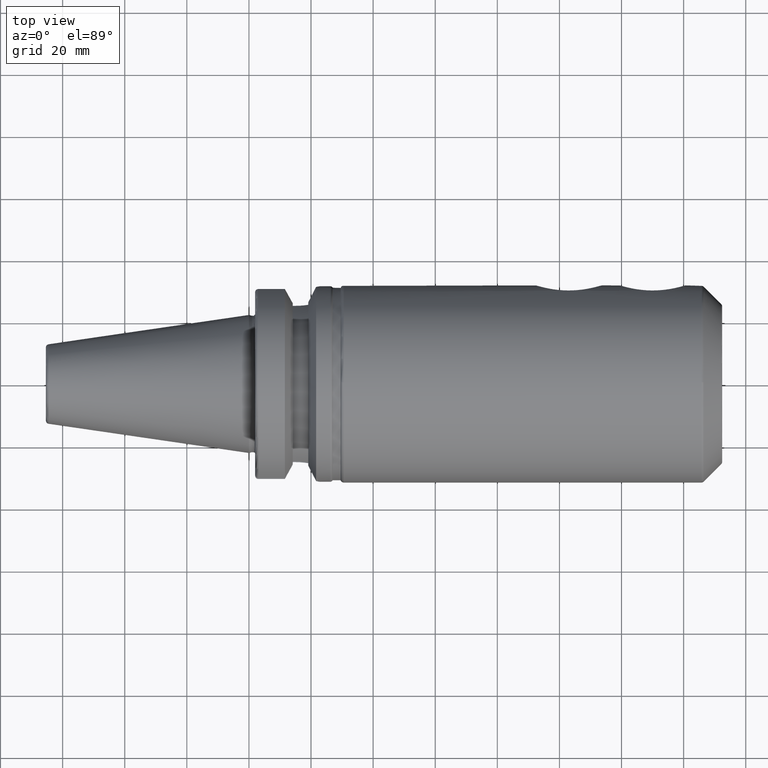
[diagram: clean part render]
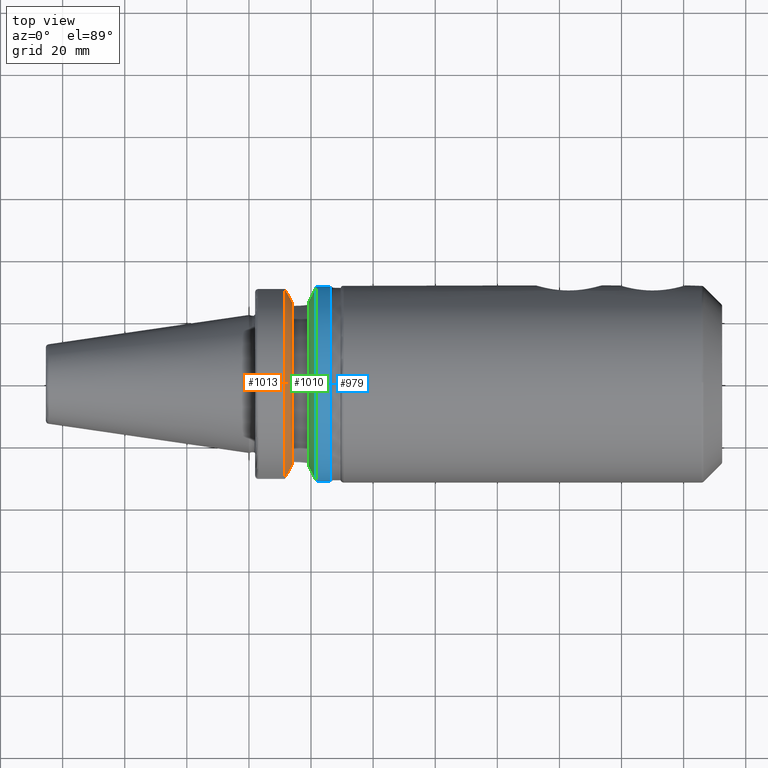
[diagram: same view with three faces highlighted in distinct colors, each labeled with its STEP entity id]
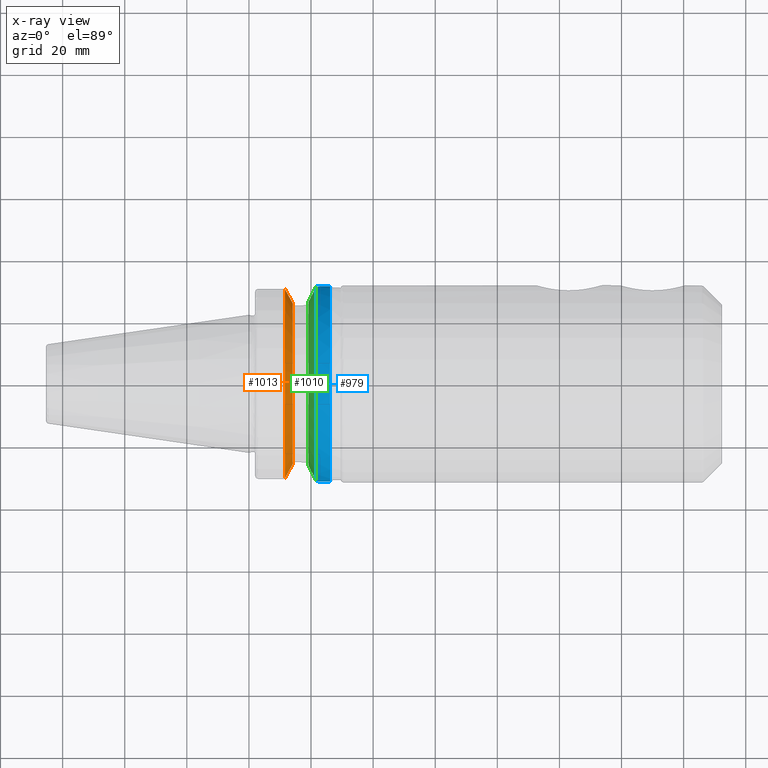
[diagram: x-ray of the same camera — body ghosted, the three highlighted faces saturated]
A machine part, top view with three faces highlighted in distinct colors.
The next image is the same camera in x-ray (body ghosted, the three faces saturated) — at least one of them is partly hidden behind the body in this view.
Their STEP definitions:

[orange] entity #1013 — the highlighted conical surface has half-angle 60.125 deg.
#15=(
BOUNDED_CURVE()
B_SPLINE_CURVE(2,(#2248,#2249,#2250),.UNSPECIFIED.,.F.,.F.)
B_SPLINE_CURVE_WITH_KNOTS((3,3),(0.,0.523582790832811),.UNSPECIFIED.)
CURVE()
GEOMETRIC_REPRESENTATION_ITEM()
RATIONAL_B_SPLINE_CURVE((1.,1.0030736009757,1.))
REPRESENTATION_ITEM('')
);
#18=(
BOUNDED_CURVE()
B_SPLINE_CURVE(2,(#2388,#2389,#2390),.UNSPECIFIED.,.F.,.F.)
B_SPLINE_CURVE_WITH_KNOTS((3,3),(0.,0.523582790832811),.UNSPECIFIED.)
CURVE()
GEOMETRIC_REPRESENTATION_ITEM()
RATIONAL_B_SPLINE_CURVE((1.,1.0030736009757,1.))
REPRESENTATION_ITEM('')
);
#29=CONICAL_SURFACE('',#1137,29.2970358274569,1.0493792127616);
#256=FACE_OUTER_BOUND('',#321,.T.);
#321=EDGE_LOOP('',(#888,#889,#890,#891));
#384=CIRCLE('',#1136,31.5000000000001);
#385=CIRCLE('',#1138,27.0940716549138);
#460=VERTEX_POINT('',#2245);
#461=VERTEX_POINT('',#2247);
#488=VERTEX_POINT('',#2385);
#489=VERTEX_POINT('',#2387);
#583=EDGE_CURVE('',#461,#460,#15,.T.);
#622=EDGE_CURVE('',#489,#488,#18,.T.);
#630=EDGE_CURVE('',#488,#461,#384,.T.);
#631=EDGE_CURVE('',#489,#460,#385,.T.);
#888=ORIENTED_EDGE('',*,*,#583,.T.);
#889=ORIENTED_EDGE('',*,*,#631,.F.);
#890=ORIENTED_EDGE('',*,*,#622,.T.);
#891=ORIENTED_EDGE('',*,*,#630,.T.);
#1013=ADVANCED_FACE('',(#256),#29,.T.);
#1136=AXIS2_PLACEMENT_3D('',#2404,#1391,#1392);
#1137=AXIS2_PLACEMENT_3D('',#2405,#1393,#1394);
#1138=AXIS2_PLACEMENT_3D('',#2406,#1395,#1396);
#1391=DIRECTION('center_axis',(1.,0.,0.));
#1392=DIRECTION('ref_axis',(0.,0.,-1.));
#1393=DIRECTION('center_axis',(-1.,0.,0.));
#1394=DIRECTION('ref_axis',(0.,1.,0.));
#1395=DIRECTION('center_axis',(1.,0.,0.));
#1396=DIRECTION('ref_axis',(0.,0.,-1.));
#2245=CARTESIAN_POINT('',(14.1,-25.8705666509569,8.05));
#2247=CARTESIAN_POINT('',(11.5690363073382,-30.4540227227866,8.05));
#2248=CARTESIAN_POINT('Ctrl Pts',(11.5690363073382,-30.4540227227866,8.05));
#2249=CARTESIAN_POINT('Ctrl Pts',(12.9374976962935,-27.9899702651817,8.05));
#2250=CARTESIAN_POINT('Ctrl Pts',(14.1,-25.8705666509569,8.05));
#2385=CARTESIAN_POINT('',(11.5690363073382,30.4540227227866,8.05));
#2387=CARTESIAN_POINT('',(14.1,25.8705666509569,8.05));
#2388=CARTESIAN_POINT('Ctrl Pts',(14.1,25.8705666509569,8.05));
#2389=CARTESIAN_POINT('Ctrl Pts',(12.9374976962935,27.9899702651817,8.05));
#2390=CARTESIAN_POINT('Ctrl Pts',(11.5690363073382,30.4540227227866,8.05));
#2404=CARTESIAN_POINT('Origin',(11.5690363073382,0.,0.));
#2405=CARTESIAN_POINT('Origin',(12.8345181536691,0.,0.));
#2406=CARTESIAN_POINT('Origin',(14.1,0.,0.));

[blue] entity #979 — the highlighted cylindrical surface (bore or boss wall) has radius 31.5 mm, axis along (1, 0, 0).
#45=B_SPLINE_CURVE_WITH_KNOTS('',3,(#1757,#1758,#1759,#1760,#1761,#1762),
 .UNSPECIFIED.,.F.,.F.,(4,2,4),(1.21877751840372,1.52344857393281,1.67526011710938),
 .UNSPECIFIED.);
#46=B_SPLINE_CURVE_WITH_KNOTS('',3,(#1766,#1767,#1768,#1769,#1770,#1771,
#1772,#1773,#1774,#1775),.UNSPECIFIED.,.F.,.F.,(4,2,2,2,4),(3.19984995650548,
3.35166149968206,3.65633255521115,3.96100361074024,4.11281515391681),
 .UNSPECIFIED.);
#47=B_SPLINE_CURVE_WITH_KNOTS('',3,(#1778,#1779,#1780,#1781,#1782,#1783),
 .UNSPECIFIED.,.F.,.F.,(4,2,4),(0.762294919698051,0.914106462874623,1.21877751840372),
 .UNSPECIFIED.);
#67=LINE('',#1755,#121);
#121=VECTOR('',#1236,31.5);
#172=CYLINDRICAL_SURFACE('',#1079,31.5);
#222=FACE_OUTER_BOUND('',#285,.T.);
#285=EDGE_LOOP('',(#712,#713,#714,#715,#716,#717,#718,#719));
#356=CIRCLE('',#1076,31.5);
#359=CIRCLE('',#1080,31.5);
#360=CIRCLE('',#1081,31.5);
#430=VERTEX_POINT('',#1748);
#432=VERTEX_POINT('',#1754);
#433=VERTEX_POINT('',#1756);
#434=VERTEX_POINT('',#1763);
#435=VERTEX_POINT('',#1765);
#436=VERTEX_POINT('',#1776);
#538=EDGE_CURVE('',#430,#430,#356,.T.);
#541=EDGE_CURVE('',#430,#432,#67,.T.);
#542=EDGE_CURVE('',#432,#433,#45,.T.);
#543=EDGE_CURVE('',#433,#434,#359,.T.);
#544=EDGE_CURVE('',#434,#435,#46,.T.);
#545=EDGE_CURVE('',#435,#436,#360,.T.);
#546=EDGE_CURVE('',#436,#432,#47,.T.);
#712=ORIENTED_EDGE('',*,*,#538,.F.);
#713=ORIENTED_EDGE('',*,*,#541,.T.);
#714=ORIENTED_EDGE('',*,*,#542,.T.);
#715=ORIENTED_EDGE('',*,*,#543,.T.);
#716=ORIENTED_EDGE('',*,*,#544,.T.);
#717=ORIENTED_EDGE('',*,*,#545,.T.);
#718=ORIENTED_EDGE('',*,*,#546,.T.);
#719=ORIENTED_EDGE('',*,*,#541,.F.);
#979=ADVANCED_FACE('',(#222),#172,.T.);
#1076=AXIS2_PLACEMENT_3D('',#1749,#1228,#1229);
#1079=AXIS2_PLACEMENT_3D('',#1753,#1234,#1235);
#1080=AXIS2_PLACEMENT_3D('',#1764,#1237,#1238);
#1081=AXIS2_PLACEMENT_3D('',#1777,#1239,#1240);
#1228=DIRECTION('center_axis',(1.,0.,0.));
#1229=DIRECTION('ref_axis',(0.,1.,-3.24889445509435E-16));
#1234=DIRECTION('center_axis',(1.,0.,0.));
#1235=DIRECTION('ref_axis',(0.,1.,0.));
#1236=DIRECTION('',(-1.,0.,0.));
#1237=DIRECTION('center_axis',(1.,0.,0.));
#1238=DIRECTION('ref_axis',(0.,0.,-1.));
#1239=DIRECTION('center_axis',(1.,0.,0.));
#1240=DIRECTION('ref_axis',(0.,0.,-1.));
#1748=CARTESIAN_POINT('',(26.1339745962155,-31.5,6.37638011623305E-15));
#1749=CARTESIAN_POINT('Origin',(26.1339745962155,0.,0.));
#1753=CARTESIAN_POINT('Origin',(24.3154818463309,0.,0.));
#1754=CARTESIAN_POINT('',(23.,-31.5,-1.51248507442265E-15));
#1755=CARTESIAN_POINT('',(24.3154818463309,-31.5,-3.85763741731416E-15));
#1756=CARTESIAN_POINT('',(21.6309636926618,-31.1782420264945,-4.4907932637046));
#1757=CARTESIAN_POINT('Ctrl Pts',(23.,-31.5,1.11022302462516E-15));
#1758=CARTESIAN_POINT('Ctrl Pts',(23.,-31.5,-1.01557018509698));
#1759=CARTESIAN_POINT('Ctrl Pts',(22.7961189876535,-31.445974204441,-2.09580170425552));
#1760=CARTESIAN_POINT('Ctrl Pts',(22.1796133812044,-31.2997625705025,-3.58065358198869));
#1761=CARTESIAN_POINT('Ctrl Pts',(21.92482980253,-31.2412125047166,-4.05360796141051));
#1762=CARTESIAN_POINT('Ctrl Pts',(21.6309636926618,-31.1782420264945,-4.4907932637046));
#1763=CARTESIAN_POINT('',(21.6309636926618,31.1782420264945,-4.4907932637046));
#1764=CARTESIAN_POINT('Origin',(21.6309636926618,0.,0.));
#1765=CARTESIAN_POINT('',(21.6309636926618,31.1782420264945,4.4907932637046));
#1766=CARTESIAN_POINT('Ctrl Pts',(21.6309636926618,31.1782420264945,-4.4907932637046));
#1767=CARTESIAN_POINT('Ctrl Pts',(21.92482980253,31.2412125047166,-4.05360796141051));
#1768=CARTESIAN_POINT('Ctrl Pts',(22.1796133812044,31.2997625705024,-3.58065358198869));
#1769=CARTESIAN_POINT('Ctrl Pts',(22.7961189876535,31.445974204441,-2.09580170425552));
#1770=CARTESIAN_POINT('Ctrl Pts',(23.,31.5,-1.01557018509698));
#1771=CARTESIAN_POINT('Ctrl Pts',(23.,31.5,1.01557018509698));
#1772=CARTESIAN_POINT('Ctrl Pts',(22.7961189876535,31.445974204441,2.09580170425552));
#1773=CARTESIAN_POINT('Ctrl Pts',(22.1796133812044,31.2997625705024,3.58065358198869));
#1774=CARTESIAN_POINT('Ctrl Pts',(21.92482980253,31.2412125047166,4.05360796141051));
#1775=CARTESIAN_POINT('Ctrl Pts',(21.6309636926618,31.1782420264945,4.4907932637046));
#1776=CARTESIAN_POINT('',(21.6309636926618,-31.1782420264945,4.4907932637046));
#1777=CARTESIAN_POINT('Origin',(21.6309636926618,0.,0.));
#1778=CARTESIAN_POINT('Ctrl Pts',(21.6309636926618,-31.1782420264945,4.4907932637046));
#1779=CARTESIAN_POINT('Ctrl Pts',(21.92482980253,-31.2412125047166,4.05360796141051));
#1780=CARTESIAN_POINT('Ctrl Pts',(22.1796133812044,-31.2997625705025,3.58065358198869));
#1781=CARTESIAN_POINT('Ctrl Pts',(22.7961189876535,-31.445974204441,2.09580170425552));
#1782=CARTESIAN_POINT('Ctrl Pts',(23.,-31.5,1.01557018509698));
#1783=CARTESIAN_POINT('Ctrl Pts',(23.,-31.5,-2.77555756156289E-16));

[green] entity #1010 — the highlighted conical surface has half-angle 60.125 deg.
#28=CONICAL_SURFACE('',#1130,29.2970358274569,1.0493792127616);
#52=B_SPLINE_CURVE_WITH_KNOTS('',3,(#2222,#2223,#2224,#2225,#2226,#2227),
 .UNSPECIFIED.,.F.,.F.,(4,2,4),(1.46421027899559,1.54570476603972,2.04294020568399),
 .UNSPECIFIED.);
#60=B_SPLINE_CURVE_WITH_KNOTS('',3,(#2361,#2362,#2363,#2364,#2365,#2366),
 .UNSPECIFIED.,.F.,.F.,(4,2,4),(3.12975744792547,3.62699288756974,3.70848737461386),
 .UNSPECIFIED.);
#253=FACE_OUTER_BOUND('',#318,.T.);
#318=EDGE_LOOP('',(#876,#877,#878,#879));
#360=CIRCLE('',#1081,31.5);
#381=CIRCLE('',#1131,27.0940716549138);
#435=VERTEX_POINT('',#1765);
#436=VERTEX_POINT('',#1776);
#454=VERTEX_POINT('',#2221);
#483=VERTEX_POINT('',#2359);
#545=EDGE_CURVE('',#435,#436,#360,.T.);
#575=EDGE_CURVE('',#454,#436,#52,.T.);
#616=EDGE_CURVE('',#435,#483,#60,.T.);
#627=EDGE_CURVE('',#483,#454,#381,.T.);
#876=ORIENTED_EDGE('',*,*,#575,.T.);
#877=ORIENTED_EDGE('',*,*,#545,.F.);
#878=ORIENTED_EDGE('',*,*,#616,.T.);
#879=ORIENTED_EDGE('',*,*,#627,.T.);
#1010=ADVANCED_FACE('',(#253),#28,.T.);
#1081=AXIS2_PLACEMENT_3D('',#1777,#1239,#1240);
#1130=AXIS2_PLACEMENT_3D('',#2398,#1379,#1380);
#1131=AXIS2_PLACEMENT_3D('',#2399,#1381,#1382);
#1239=DIRECTION('center_axis',(1.,0.,0.));
#1240=DIRECTION('ref_axis',(0.,0.,-1.));
#1379=DIRECTION('center_axis',(1.,0.,0.));
#1380=DIRECTION('ref_axis',(0.,1.,0.));
#1381=DIRECTION('center_axis',(1.,0.,0.));
#1382=DIRECTION('ref_axis',(0.,0.,-1.));
#1765=CARTESIAN_POINT('',(21.6309636926618,31.1782420264945,4.4907932637046));
#1776=CARTESIAN_POINT('',(21.6309636926618,-31.1782420264945,4.4907932637046));
#1777=CARTESIAN_POINT('Origin',(21.6309636926618,0.,0.));
#2221=CARTESIAN_POINT('',(19.1,-26.201311395455,6.89782574439221));
#2222=CARTESIAN_POINT('Ctrl Pts',(19.1,-26.201311395455,6.89782574439221));
#2223=CARTESIAN_POINT('Ctrl Pts',(19.2210929544554,-26.4384736933511,6.82497151762395));
#2224=CARTESIAN_POINT('Ctrl Pts',(19.3406963650697,-26.6728819297428,6.74867108656039));
#2225=CARTESIAN_POINT('Ctrl Pts',(20.1784155384866,-28.3157123387484,6.18231368976925));
#2226=CARTESIAN_POINT('Ctrl Pts',(20.9728756148303,-29.8797957262939,5.46983244373115));
#2227=CARTESIAN_POINT('Ctrl Pts',(21.6309636926618,-31.1782420264945,4.4907932637046));
#2359=CARTESIAN_POINT('',(19.1,26.201311395455,6.89782574439221));
#2361=CARTESIAN_POINT('Ctrl Pts',(21.6309636926618,31.1782420264945,4.4907932637046));
#2362=CARTESIAN_POINT('Ctrl Pts',(20.9728756148303,29.8797957262939,5.46983244373114));
#2363=CARTESIAN_POINT('Ctrl Pts',(20.1784155384866,28.3157123387484,6.18231368976924));
#2364=CARTESIAN_POINT('Ctrl Pts',(19.3406963650697,26.6728819297428,6.74867108656039));
#2365=CARTESIAN_POINT('Ctrl Pts',(19.2210929544554,26.438473693351,6.82497151762395));
#2366=CARTESIAN_POINT('Ctrl Pts',(19.1,26.201311395455,6.89782574439221));
#2398=CARTESIAN_POINT('Origin',(20.3654818463309,0.,0.));
#2399=CARTESIAN_POINT('Origin',(19.1,0.,0.));